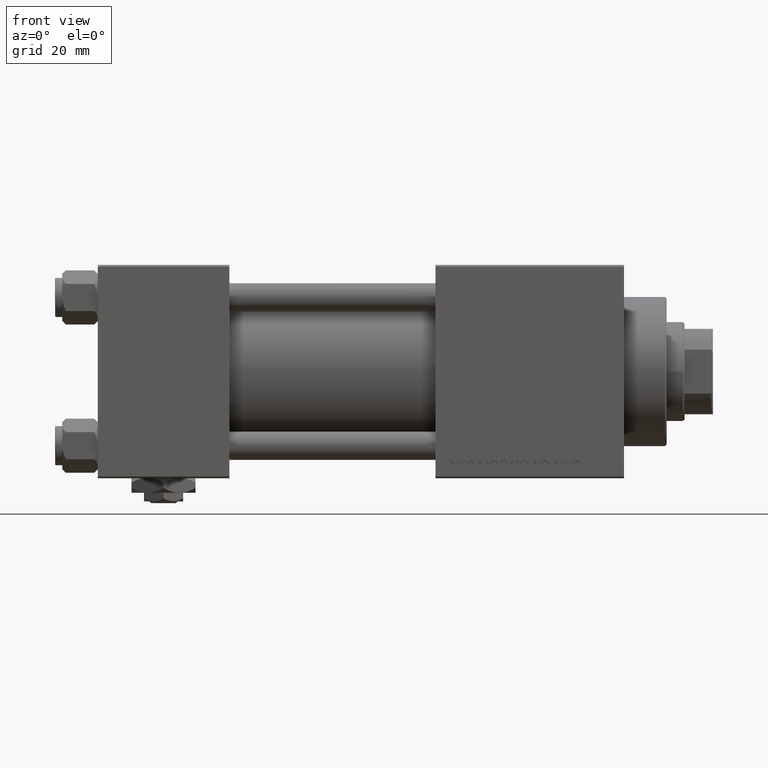
[diagram: clean part render]
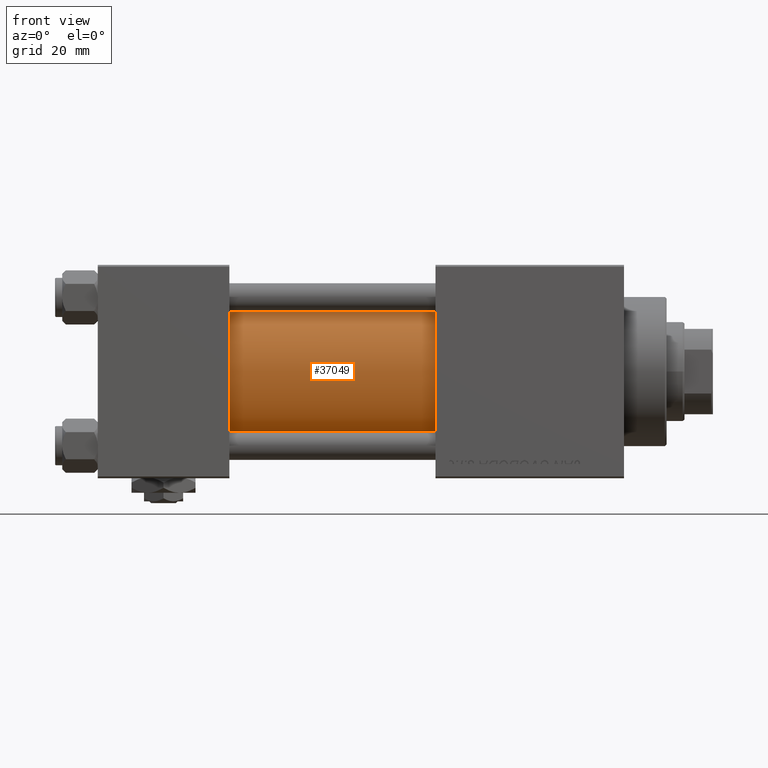
[diagram: same view with one face highlighted and labeled with its STEP entity id]
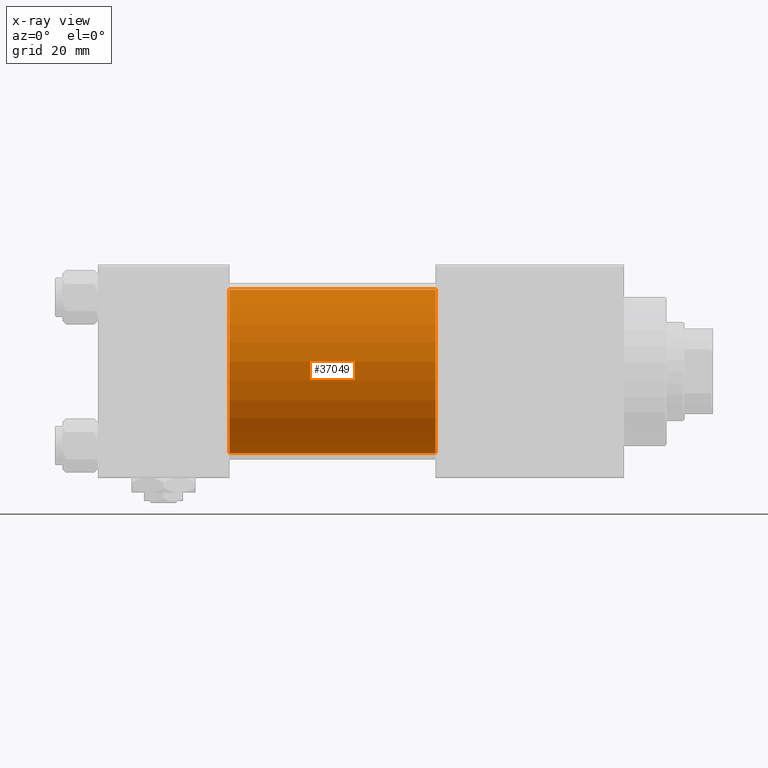
[diagram: x-ray of the same camera — body ghosted, the highlighted face saturated]
A machine part, front view. The second image highlights one B-rep face of the part: STEP entity #37049.
The next image is the same camera in x-ray: the body ghosted, the highlighted face saturated — about 1% of this face is hidden behind the body in this view.
In plain terms, the highlighted cylindrical surface (partial cylindrical patch) has radius 23 mm, axis along (-1, -0, -0).
Its self-contained STEP definition (entity closure, byte-faithful):
#338 = DIRECTION ( 'NONE',  ( 0.000000000000000000, 0.000000000000000000, 1.000000000000000000 ) ) ;
#1372 = VERTEX_POINT ( 'NONE', #32392 ) ;
#3819 = VECTOR ( 'NONE', #36466, 1000.000000000000000 ) ;
#4723 = EDGE_CURVE ( 'NONE', #38746, #43198, #11816, .T. ) ;
#6615 = CARTESIAN_POINT ( 'NONE',  ( 95.00000000000000000, 2.146024240737012665E-16, -23.00000000000000000 ) ) ;
#6961 = CYLINDRICAL_SURFACE ( 'NONE', #15713, 23.00000000000000000 ) ;
#7197 = LINE ( 'NONE', #23575, #3819 ) ;
#7518 = AXIS2_PLACEMENT_3D ( 'NONE', #36283, #11752, #35520 ) ;
#8103 = CARTESIAN_POINT ( 'NONE',  ( 95.00000000000000000, -2.602085213965210642E-15, 23.00000000000000000 ) ) ;
#8597 = VERTEX_POINT ( 'NONE', #6615 ) ;
#10362 = DIRECTION ( 'NONE',  ( -1.000000000000000000, -0.000000000000000000, -0.000000000000000000 ) ) ;
#11100 = EDGE_CURVE ( 'NONE', #43198, #1372, #36951, .T. ) ;
#11701 = DIRECTION ( 'NONE',  ( -1.000000000000000000, -0.000000000000000000, -0.000000000000000000 ) ) ;
#11752 = DIRECTION ( 'NONE',  ( 1.000000000000000000, 0.000000000000000000, 0.000000000000000000 ) ) ;
#11816 = LINE ( 'NONE', #8103, #29288 ) ;
#13017 = ORIENTED_EDGE ( 'NONE', *, *, #13962, .F. ) ;
#13962 = EDGE_CURVE ( 'NONE', #38746, #8597, #42068, .T. ) ;
#15713 = AXIS2_PLACEMENT_3D ( 'NONE', #23060, #11701, #338 ) ;
#23060 = CARTESIAN_POINT ( 'NONE',  ( 95.00000000000000000, -2.602085213965210642E-15, 0.000000000000000000 ) ) ;
#23575 = CARTESIAN_POINT ( 'NONE',  ( 95.00000000000000000, 2.146024240737012665E-16, -23.00000000000000000 ) ) ;
#25177 = AXIS2_PLACEMENT_3D ( 'NONE', #28281, #43852, #44361 ) ;
#27878 = CARTESIAN_POINT ( 'NONE',  ( 95.00000000000000000, -2.602085213965210642E-15, 23.00000000000000000 ) ) ;
#28281 = CARTESIAN_POINT ( 'NONE',  ( 37.00000000000000000, -2.602085213965210642E-15, 0.000000000000000000 ) ) ;
#29288 = VECTOR ( 'NONE', #10362, 1000.000000000000000 ) ;
#30374 = EDGE_CURVE ( 'NONE', #8597, #1372, #7197, .T. ) ;
#32392 = CARTESIAN_POINT ( 'NONE',  ( 37.00000000000000000, 2.146024240737012665E-16, -23.00000000000000000 ) ) ;
#34935 = FACE_OUTER_BOUND ( 'NONE', #37935, .T. ) ;
#35520 = DIRECTION ( 'NONE',  ( 0.000000000000000000, 0.000000000000000000, -1.000000000000000000 ) ) ;
#36283 = CARTESIAN_POINT ( 'NONE',  ( 95.00000000000000000, -2.602085213965210642E-15, 0.000000000000000000 ) ) ;
#36466 = DIRECTION ( 'NONE',  ( -1.000000000000000000, -0.000000000000000000, -0.000000000000000000 ) ) ;
#36951 = CIRCLE ( 'NONE', #25177, 23.00000000000000000 ) ;
#37049 = ADVANCED_FACE ( 'NONE', ( #34935 ), #6961, .T. ) ;
#37063 = ORIENTED_EDGE ( 'NONE', *, *, #4723, .T. ) ;
#37935 = EDGE_LOOP ( 'NONE', ( #41708, #13017, #37063, #41549 ) ) ;
#38746 = VERTEX_POINT ( 'NONE', #27878 ) ;
#41549 = ORIENTED_EDGE ( 'NONE', *, *, #11100, .T. ) ;
#41708 = ORIENTED_EDGE ( 'NONE', *, *, #30374, .F. ) ;
#42068 = CIRCLE ( 'NONE', #7518, 23.00000000000000000 ) ;
#43198 = VERTEX_POINT ( 'NONE', #43665 ) ;
#43665 = CARTESIAN_POINT ( 'NONE',  ( 37.00000000000000000, -2.602085213965210642E-15, 23.00000000000000000 ) ) ;
#43852 = DIRECTION ( 'NONE',  ( 1.000000000000000000, -0.000000000000000000, 0.000000000000000000 ) ) ;
#44361 = DIRECTION ( 'NONE',  ( 0.000000000000000000, 0.000000000000000000, 1.000000000000000000 ) ) ;